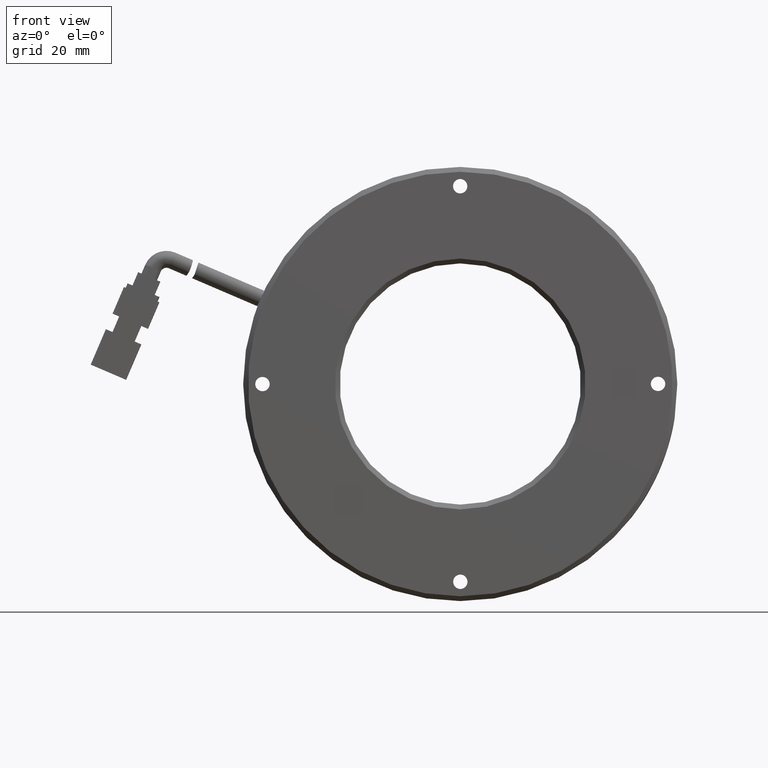
[diagram: clean part render]
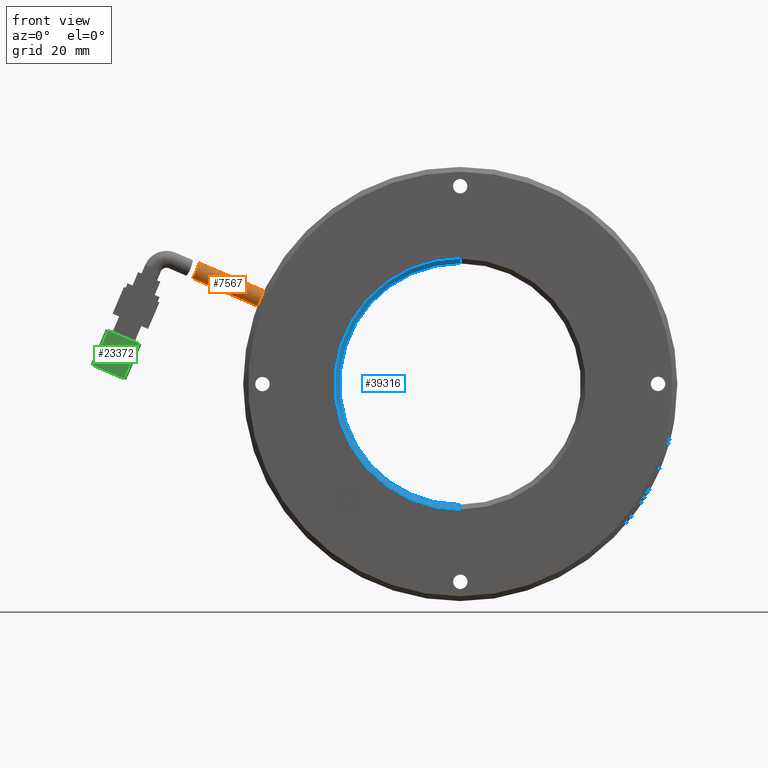
[diagram: same view with three faces highlighted in distinct colors, each labeled with its STEP entity id]
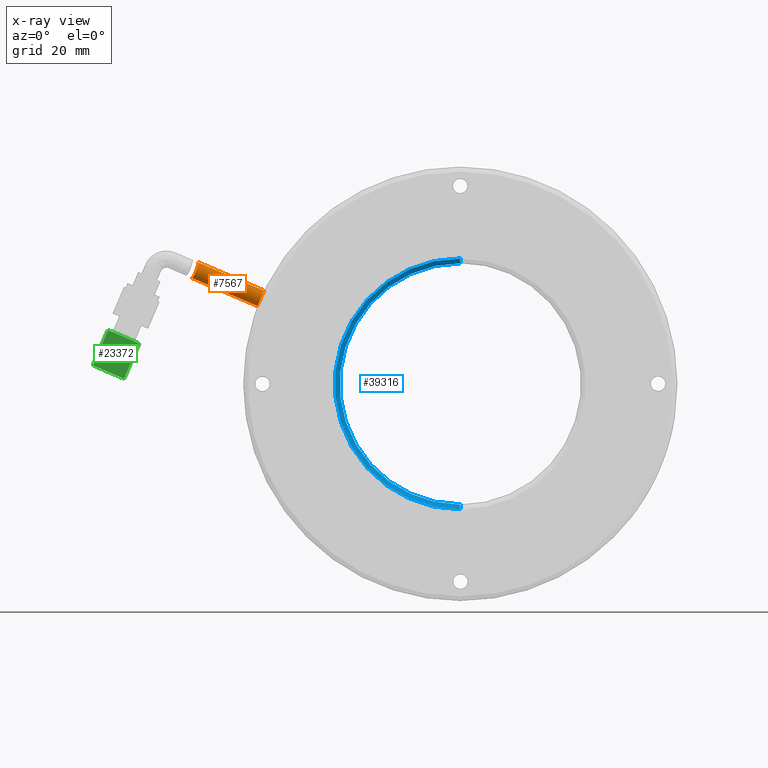
[diagram: x-ray of the same camera — body ghosted, the three highlighted faces saturated]
A machine part, front view with three faces highlighted in distinct colors.
The next image is the same camera in x-ray (body ghosted, the three faces saturated) — at least one of them is partly hidden behind the body in this view.
Their STEP definitions:

[orange] entity #7567 — the highlighted cylindrical surface (edge-blend (fillet) strip) has radius 1.75 mm, axis along (0.9191, 0, -0.394).
#266 = VERTEX_POINT ( 'NONE', #20220 ) ;
#703 = CARTESIAN_POINT ( 'NONE',  ( -50.77909560755499300, 1.465710635176062000, 24.73364882688971300 ) ) ;
#834 = CARTESIAN_POINT ( 'NONE',  ( -51.87908552546488000, 1.744069041795588900, 22.12139230228985200 ) ) ;
#2447 = CYLINDRICAL_SURFACE ( 'NONE', #6578, 1.750000000000000200 ) ;
#2702 = DIRECTION ( 'NONE',  ( -0.3940263951155867400, 0.0000000000000000000, -0.9190991241167709700 ) ) ;
#3245 = VERTEX_POINT ( 'NONE', #35357 ) ;
#3582 = ORIENTED_EDGE ( 'NONE', *, *, #26667, .T. ) ;
#3797 = CARTESIAN_POINT ( 'NONE',  ( -50.88678285882374300, 1.094646765137655500, 24.30560019710689100 ) ) ;
#3931 = CARTESIAN_POINT ( 'NONE',  ( -51.99689455294409900, 2.162766865945132500, 21.96907219021952400 ) ) ;
#4938 = EDGE_CURVE ( 'NONE', #14625, #11873, #32798, .T. ) ;
#5109 = CARTESIAN_POINT ( 'NONE',  ( -55.48046830470935500, 2.623552123552121100, 27.22013914971745100 ) ) ;
#6122 = LINE ( 'NONE', #32379, #13327 ) ;
#6207 = B_SPLINE_CURVE_WITH_KNOTS ( 'NONE', 3,
 ( #6796, #28277, #31519, #12979, #34595, #16088, #37714, #19130, #703, #22295, #3797, #25460, #6922, #28544, #10013, #31648, #13107, #34727, #16215, #37845, #19267, #834, #22423, #3931, #25592, #7056 ),
 .UNSPECIFIED., .F., .F.,
 ( 4, 2, 2, 2, 2, 2, 2, 2, 2, 2, 2, 2, 4 ),
 ( 2.153172013482225800E-017, 0.0003431607499797095900, 0.0006863214999593977100, 0.001029482249939085700, 0.001372642999918773700, 0.002058964499878154000, 0.002745285999837534900, 0.003088446749817219900, 0.003431607499796905000, 0.004117928999756283700, 0.004461089749735977000, 0.004804250499715671100, 0.005490571999675061100 ),
 .UNSPECIFIED. ) ;
#6272 = DIRECTION ( 'NONE',  ( 0.9190991241167713000, 4.506924669917426200E-032, -0.3940263951155857900 ) ) ;
#6578 = AXIS2_PLACEMENT_3D ( 'NONE', #18313, #39983, #33881 ) ;
#6796 = CARTESIAN_POINT ( 'NONE',  ( -50.68354285804238700, 2.623552123552122000, 25.16365232278814900 ) ) ;
#6922 = CARTESIAN_POINT ( 'NONE',  ( -51.07964039724015500, 0.8738358680707984900, 23.68082510628945400 ) ) ;
#7056 = CARTESIAN_POINT ( 'NONE',  ( -52.02851782803413300, 2.623552123552121100, 21.93217893420495200 ) ) ;
#7567 = ADVANCED_FACE ( 'NONE', ( #38238 ), #2447, .T. ) ;
#10013 = CARTESIAN_POINT ( 'NONE',  ( -51.24671828439088000, 0.8847786524610654600, 23.25215865647128100 ) ) ;
#11873 = VERTEX_POINT ( 'NONE', #33397 ) ;
#11924 = CARTESIAN_POINT ( 'NONE',  ( -50.68354285804238700, 2.623552123552122000, 25.16365232278814900 ) ) ;
#12326 = AXIS2_PLACEMENT_3D ( 'NONE', #39755, #21220, #2702 ) ;
#12979 = CARTESIAN_POINT ( 'NONE',  ( -50.69532480322725100, 2.169151481692702900, 25.10760102889362200 ) ) ;
#13107 = CARTESIAN_POINT ( 'NONE',  ( -51.38411828243214800, 0.9626814588313672400, 22.94713029651804000 ) ) ;
#13327 = VECTOR ( 'NONE', #16841, 1000.000000000000100 ) ;
#14625 = VERTEX_POINT ( 'NONE', #11924 ) ;
#16088 = CARTESIAN_POINT ( 'NONE',  ( -50.72151728457915700, 1.845815987376248700, 24.98612914325708400 ) ) ;
#16215 = CARTESIAN_POINT ( 'NONE',  ( -51.62667506849177800, 1.223803260120380300, 22.49418230373059700 ) ) ;
#16841 = DIRECTION ( 'NONE',  ( 0.9190991241167713000, 4.506924669917426200E-032, -0.3940263951155857900 ) ) ;
#18313 = CARTESIAN_POINT ( 'NONE',  ( -56.17001449616162700, 2.623552123552121100, 25.61171568251310000 ) ) ;
#18542 = ORIENTED_EDGE ( 'NONE', *, *, #29217, .T. ) ;
#19130 = CARTESIAN_POINT ( 'NONE',  ( -50.76204291592965500, 1.555363708025988600, 24.80657324504884500 ) ) ;
#19267 = CARTESIAN_POINT ( 'NONE',  ( -51.80328874567268800, 1.555135114057395700, 22.22659939522225500 ) ) ;
#20220 = CARTESIAN_POINT ( 'NONE',  ( -38.47757820527847600, 2.623552123552121100, 16.12276431299703500 ) ) ;
#20941 = ORIENTED_EDGE ( 'NONE', *, *, #4938, .F. ) ;
#21220 = DIRECTION ( 'NONE',  ( -0.9190991241167714200, -4.506924669917426800E-032, 0.3940263951155858500 ) ) ;
#22295 = CARTESIAN_POINT ( 'NONE',  ( -50.83720605662259800, 1.224568790505175000, 24.49586040886067900 ) ) ;
#22423 = CARTESIAN_POINT ( 'NONE',  ( -51.91329328097216200, 1.846364108505569800, 22.07633125900905900 ) ) ;
#24344 = CIRCLE ( 'NONE', #12326, 1.750000000000000200 ) ;
#25460 = CARTESIAN_POINT ( 'NONE',  ( -51.00721059224564200, 0.9201902850518135500, 23.90024516809798900 ) ) ;
#25592 = CARTESIAN_POINT ( 'NONE',  ( -52.02851782803415400, 2.391390157652095700, 21.93217893420496600 ) ) ;
#26667 = EDGE_CURVE ( 'NONE', #3245, #266, #6122, .T. ) ;
#26782 = ORIENTED_EDGE ( 'NONE', *, *, #32259, .T. ) ;
#28277 = CARTESIAN_POINT ( 'NONE',  ( -50.68354285804240100, 2.507499224030748800, 25.16365232278815600 ) ) ;
#28544 = CARTESIAN_POINT ( 'NONE',  ( -51.20254917035004600, 0.8734122491507148000, 23.35994030167844900 ) ) ;
#29217 = EDGE_CURVE ( 'NONE', #266, #11873, #24344, .T. ) ;
#31519 = CARTESIAN_POINT ( 'NONE',  ( -50.68591565652417300, 2.393443971605387200, 25.15223396018181700 ) ) ;
#31648 = CARTESIAN_POINT ( 'NONE',  ( -51.33737685115718800, 0.9295290906878136400, 23.04615637797395800 ) ) ;
#31840 = VECTOR ( 'NONE', #6272, 1000.000000000000100 ) ;
#32259 = EDGE_CURVE ( 'NONE', #14625, #3245, #6207, .T. ) ;
#32379 = CARTESIAN_POINT ( 'NONE',  ( -56.85956068761390700, 2.623552123552121100, 24.00329221530875400 ) ) ;
#32798 = LINE ( 'NONE', #5109, #31840 ) ;
#33397 = CARTESIAN_POINT ( 'NONE',  ( -37.09848582237392400, 2.623552123552121100, 19.33961124740573500 ) ) ;
#33881 = DIRECTION ( 'NONE',  ( -0.3940263951155867400, 0.0000000000000000000, -0.9190991241167709700 ) ) ;
#34595 = CARTESIAN_POINT ( 'NONE',  ( -50.70248157663473200, 2.057725382615567700, 25.07381899001490700 ) ) ;
#34727 = CARTESIAN_POINT ( 'NONE',  ( -51.52823062712553800, 1.094757445249773000, 22.66190402656213400 ) ) ;
#35083 = EDGE_LOOP ( 'NONE', ( #20941, #26782, #3582, #18542 ) ) ;
#35357 = CARTESIAN_POINT ( 'NONE',  ( -52.02851782803413300, 2.623552123552121100, 21.93217893420495200 ) ) ;
#37714 = CARTESIAN_POINT ( 'NONE',  ( -50.73331311162690600, 1.745379166024197500, 24.93258824459822200 ) ) ;
#37845 = CARTESIAN_POINT ( 'NONE',  ( -51.76144079505712600, 1.467280807094164500, 22.28705144860454700 ) ) ;
#38238 = FACE_OUTER_BOUND ( 'NONE', #35083, .T. ) ;
#39755 = CARTESIAN_POINT ( 'NONE',  ( -37.78803201382620400, 2.623552123552121100, 17.73118778020138500 ) ) ;
#39983 = DIRECTION ( 'NONE',  ( 0.9190991241167714200, 4.506924669917426800E-032, -0.3940263951155858500 ) ) ;

[blue] entity #39316 — the highlighted conical surface has half-angle 45 deg.
#375 = VERTEX_POINT ( 'NONE', #32683 ) ;
#497 = ORIENTED_EDGE ( 'NONE', *, *, #36613, .F. ) ;
#906 = DIRECTION ( 'NONE',  ( 0.0000000000000000000, -1.000000000000000000, 0.0000000000000000000 ) ) ;
#1647 = AXIS2_PLACEMENT_3D ( 'NONE', #21853, #3362, #25024 ) ;
#2461 = ORIENTED_EDGE ( 'NONE', *, *, #39393, .T. ) ;
#3024 = DIRECTION ( 'NONE',  ( 0.0000000000000000000, -0.7071067811865536800, -0.7071067811865414700 ) ) ;
#3362 = DIRECTION ( 'NONE',  ( 0.0000000000000000000, -1.000000000000000000, 0.0000000000000000000 ) ) ;
#4755 = CONICAL_SURFACE ( 'NONE', #6574, 25.99999999999998200, 0.7853981633974396200 ) ;
#5940 = EDGE_LOOP ( 'NONE', ( #497, #8495, #2461, #24944 ) ) ;
#6280 = VECTOR ( 'NONE', #12535, 1000.000000000000000 ) ;
#6574 = AXIS2_PLACEMENT_3D ( 'NONE', #21068, #39617, #39743 ) ;
#6715 = VERTEX_POINT ( 'NONE', #37501 ) ;
#7931 = VECTOR ( 'NONE', #3024, 1000.000000000000000 ) ;
#8495 = ORIENTED_EDGE ( 'NONE', *, *, #22502, .T. ) ;
#8625 = FACE_OUTER_BOUND ( 'NONE', #5940, .T. ) ;
#8902 = LINE ( 'NONE', #40080, #7931 ) ;
#12535 = DIRECTION ( 'NONE',  ( 8.659560562354857700E-017, -0.7071067811865536800, 0.7071067811865414700 ) ) ;
#12963 = VERTEX_POINT ( 'NONE', #14026 ) ;
#14026 = CARTESIAN_POINT ( 'NONE',  ( 3.571428571428568500, -1.376447876447878900, 25.99999999999998200 ) ) ;
#14228 = EDGE_CURVE ( 'NONE', #26017, #6715, #8902, .T. ) ;
#19339 = CARTESIAN_POINT ( 'NONE',  ( 3.571428571428565800, -0.3764478764478815200, 0.0000000000000000000 ) ) ;
#21068 = CARTESIAN_POINT ( 'NONE',  ( 3.571428571428565800, -1.376447876447879400, 0.0000000000000000000 ) ) ;
#21853 = CARTESIAN_POINT ( 'NONE',  ( 3.571428571428565800, -1.376447876447878900, 0.0000000000000000000 ) ) ;
#22498 = DIRECTION ( 'NONE',  ( 0.0000000000000000000, -3.469446951953614200E-017, -1.000000000000000000 ) ) ;
#22502 = EDGE_CURVE ( 'NONE', #375, #12963, #30942, .T. ) ;
#24864 = CARTESIAN_POINT ( 'NONE',  ( 3.571428571428568500, -1.376447876447879400, 25.99999999999998200 ) ) ;
#24944 = ORIENTED_EDGE ( 'NONE', *, *, #14228, .F. ) ;
#25024 = DIRECTION ( 'NONE',  ( 0.0000000000000000000, 0.0000000000000000000, -1.000000000000000000 ) ) ;
#26017 = VERTEX_POINT ( 'NONE', #35809 ) ;
#28976 = CIRCLE ( 'NONE', #32308, 25.00000000000000000 ) ;
#29899 = CIRCLE ( 'NONE', #1647, 25.99999999999998200 ) ;
#30942 = LINE ( 'NONE', #24864, #6280 ) ;
#32308 = AXIS2_PLACEMENT_3D ( 'NONE', #19339, #906, #22498 ) ;
#32683 = CARTESIAN_POINT ( 'NONE',  ( 3.571428571428568500, -0.3764478764478815200, 25.00000000000000000 ) ) ;
#35809 = CARTESIAN_POINT ( 'NONE',  ( 3.571428571428565800, -0.3764478764478824100, -25.00000000000000000 ) ) ;
#36613 = EDGE_CURVE ( 'NONE', #375, #26017, #28976, .T. ) ;
#37501 = CARTESIAN_POINT ( 'NONE',  ( 3.571428571428565800, -1.376447876447878900, -25.99999999999998200 ) ) ;
#39316 = ADVANCED_FACE ( 'NONE', ( #8625 ), #4755, .F. ) ;
#39393 = EDGE_CURVE ( 'NONE', #12963, #6715, #29899, .T. ) ;
#39617 = DIRECTION ( 'NONE',  ( 0.0000000000000000000, -1.000000000000000000, 0.0000000000000000000 ) ) ;
#39743 = DIRECTION ( 'NONE',  ( 0.0000000000000000000, 0.0000000000000000000, -1.000000000000000000 ) ) ;
#40080 = CARTESIAN_POINT ( 'NONE',  ( 3.571428571428565800, -1.376447876447879400, -25.99999999999998200 ) ) ;

[green] entity #23372 — the highlighted planar face has unit normal (-0, 1, 0).
#2279 = LINE ( 'NONE', #28471, #18660 ) ;
#3189 = VERTEX_POINT ( 'NONE', #14867 ) ;
#3239 = LINE ( 'NONE', #18103, #26951 ) ;
#4900 = VERTEX_POINT ( 'NONE', #35051 ) ;
#5168 = EDGE_CURVE ( 'NONE', #4900, #3189, #2279, .T. ) ;
#5980 = ORIENTED_EDGE ( 'NONE', *, *, #9837, .F. ) ;
#6925 = VECTOR ( 'NONE', #8669, 1000.000000000000100 ) ;
#7310 = DIRECTION ( 'NONE',  ( -6.342662912824196000E-017, 1.000000000000000000, 1.665204698175999300E-016 ) ) ;
#8543 = EDGE_CURVE ( 'NONE', #39305, #31769, #3239, .T. ) ;
#8669 = DIRECTION ( 'NONE',  ( -0.3940263951155860100, 1.280570519271349500E-016, -0.9190991241167711900 ) ) ;
#8793 = LINE ( 'NONE', #29958, #17006 ) ;
#9818 = ORIENTED_EDGE ( 'NONE', *, *, #8543, .F. ) ;
#9837 = EDGE_CURVE ( 'NONE', #31769, #4900, #23364, .T. ) ;
#11890 = ORIENTED_EDGE ( 'NONE', *, *, #33095, .F. ) ;
#13714 = EDGE_LOOP ( 'NONE', ( #11890, #18511, #5980, #9818 ) ) ;
#14867 = CARTESIAN_POINT ( 'NONE',  ( -72.58585827348366600, -1.376447876447878900, 3.816760461669979100 ) ) ;
#17006 = VECTOR ( 'NONE', #32907, 1000.000000000000100 ) ;
#18103 = CARTESIAN_POINT ( 'NONE',  ( -62.99995324374156500, -1.376447876447879800, 8.411368688795029400 ) ) ;
#18511 = ORIENTED_EDGE ( 'NONE', *, *, #5168, .F. ) ;
#18660 = VECTOR ( 'NONE', #28423, 1000.000000000000100 ) ;
#23364 = LINE ( 'NONE', #27192, #6925 ) ;
#23372 = ADVANCED_FACE ( 'NONE', ( #24974 ), #28825, .F. ) ;
#24548 = AXIS2_PLACEMENT_3D ( 'NONE', #25849, #7310, #28961 ) ;
#24974 = FACE_OUTER_BOUND ( 'NONE', #13714, .T. ) ;
#25849 = CARTESIAN_POINT ( 'NONE',  ( -66.15216440466623700, -1.376447876447878900, 1.058575695860871400 ) ) ;
#26951 = VECTOR ( 'NONE', #39771, 1000.000000000000100 ) ;
#27179 = CARTESIAN_POINT ( 'NONE',  ( -69.43364711255897200, -1.376447876447879800, 11.16955345460414000 ) ) ;
#27192 = CARTESIAN_POINT ( 'NONE',  ( -66.15216440466628000, -1.376447876447878900, 1.058575695860887200 ) ) ;
#28423 = DIRECTION ( 'NONE',  ( -0.9190991241167711900, -1.239088197126291100E-016, 0.3940263951155860100 ) ) ;
#28471 = CARTESIAN_POINT ( 'NONE',  ( -66.15216440466623700, -1.376447876447878900, 1.058575695860871400 ) ) ;
#28825 = PLANE ( 'NONE',  #24548 ) ;
#28961 = DIRECTION ( 'NONE',  ( 0.3940263951155860100, -1.280570519271349500E-016, 0.9190991241167711900 ) ) ;
#29958 = CARTESIAN_POINT ( 'NONE',  ( -72.58585827348365200, -1.376447876447878900, 3.816760461669980800 ) ) ;
#31769 = VERTEX_POINT ( 'NONE', #36802 ) ;
#32907 = DIRECTION ( 'NONE',  ( 0.3940263951155860100, -1.280570519271349500E-016, 0.9190991241167711900 ) ) ;
#33095 = EDGE_CURVE ( 'NONE', #3189, #39305, #8793, .T. ) ;
#35051 = CARTESIAN_POINT ( 'NONE',  ( -66.15216440466625200, -1.376447876447878900, 1.058575695860878500 ) ) ;
#36802 = CARTESIAN_POINT ( 'NONE',  ( -62.99995324374157900, -1.376447876447879800, 8.411368688795040100 ) ) ;
#39305 = VERTEX_POINT ( 'NONE', #27179 ) ;
#39771 = DIRECTION ( 'NONE',  ( 0.9190991241167711900, 1.239088197126291100E-016, -0.3940263951155860100 ) ) ;